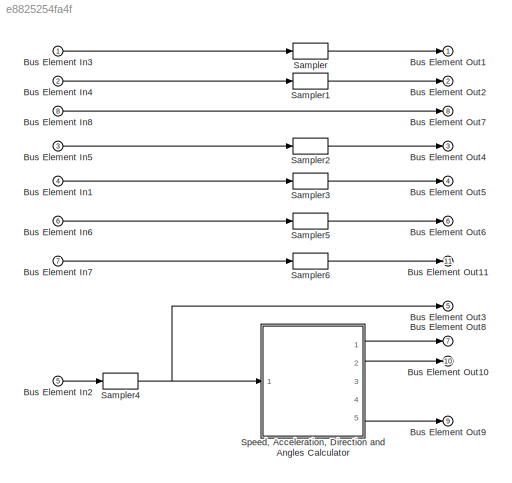
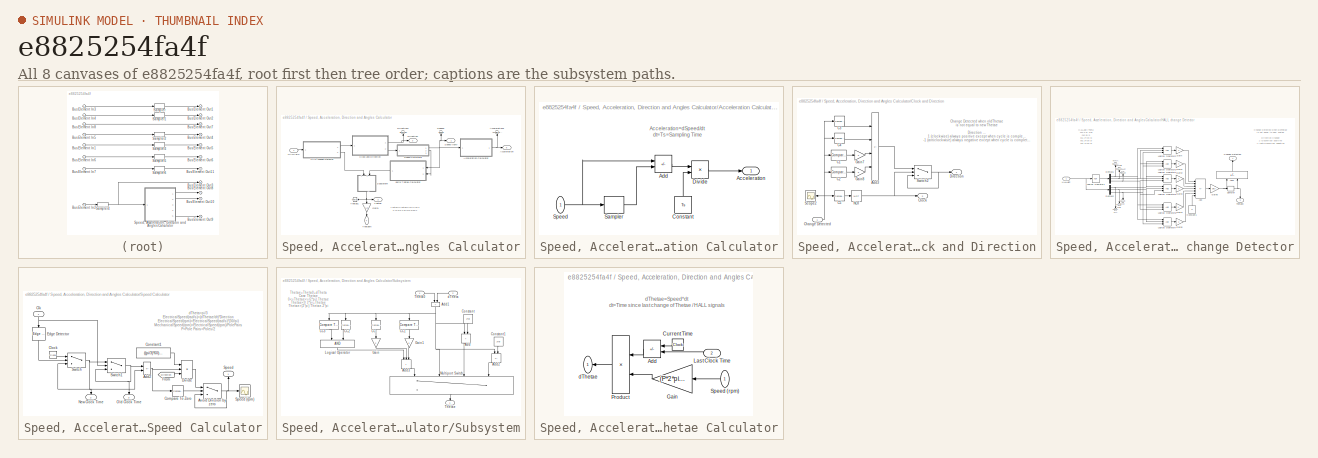
[diagram: thumbnail index - all 8 canvases of the model, root first then tree order]
MODEL slx_e8825254fa4f
KIND model
CONFIG AbsTol = auto
CONFIG EnableMultiTasking = off
CONFIG FixedStep = auto
CONFIG MaxStep = auto
CONFIG MinStep = auto
CONFIG RelTol = 1e-3
CONFIG SampleTimeConstraint = Unconstrained
CONFIG Solver = VariableStepAuto
CONFIG SolverName = VariableStepAuto
CONFIG StartTime = 0.0
CONFIG StopTime = 10.0
BLOCK [Inport] Bus Element In1
  Port = 4
BLOCK [Inport] Bus Element In2
  Port = 5
BLOCK [Inport] Bus Element In3
BLOCK [Inport] Bus Element In4
  Port = 2
BLOCK [Inport] Bus Element In5
  Port = 3
BLOCK [Inport] Bus Element In6
  Port = 6
BLOCK [Inport] Bus Element In7
  Port = 7
BLOCK [Inport] Bus Element In8
  Port = 8
BLOCK [Outport] Bus Element Out1
BLOCK [Outport] Bus Element Out10
  Port = 10
BLOCK [Outport] Bus Element Out11
  Port = 11
BLOCK [Outport] Bus Element Out2
  Port = 2
BLOCK [Outport] Bus Element Out3
  Port = 5
BLOCK [Outport] Bus Element Out4
  Port = 3
BLOCK [Outport] Bus Element Out5
  Port = 4
BLOCK [Outport] Bus Element Out6
  Port = 6
BLOCK [Outport] Bus Element Out7
  Port = 8
BLOCK [Outport] Bus Element Out8
  Port = 7
BLOCK [Outport] Bus Element Out9
  Port = 9
BLOCK [ZeroOrderHold] Sampler
  NameLocation = top
  SampleTime = 1e-4
BLOCK [ZeroOrderHold] Sampler1
  NameLocation = top
  SampleTime = 1e-4
BLOCK [ZeroOrderHold] Sampler2
  NameLocation = top
  SampleTime = 1e-4
BLOCK [ZeroOrderHold] Sampler3
  NameLocation = top
  SampleTime = 1e-4
BLOCK [ZeroOrderHold] Sampler4
  NameLocation = top
  SampleTime = 1e-4
BLOCK [ZeroOrderHold] Sampler5
  NameLocation = top
  SampleTime = 1e-4
BLOCK [ZeroOrderHold] Sampler6
  NameLocation = top
  SampleTime = 1e-4
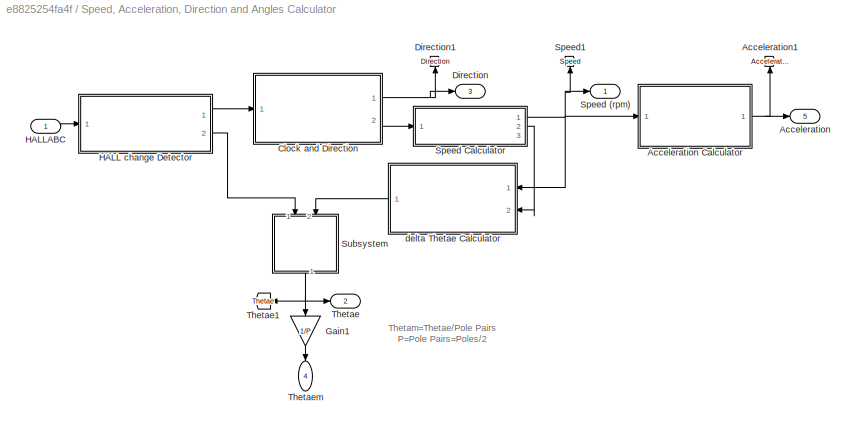
BLOCK [SubSystem] Speed, Acceleration, Direction and Angles Calculator
  Ports = [1, 5]
  RequestExecContextInheritance = off
BLOCK [Outport] Speed, Acceleration, Direction and Angles Calculator/Acceleration
  NameLocation = top
  Port = 5
BLOCK [SubSystem] Speed, Acceleration, Direction and Angles Calculator/Acceleration Calculator
  Ports = [1, 1]
  RequestExecContextInheritance = off
BLOCK [Outport] Speed, Acceleration, Direction and Angles Calculator/Acceleration Calculator/Acceleration
BLOCK [Sum] Speed, Acceleration, Direction and Angles Calculator/Acceleration Calculator/Add
  IconShape = rectangular
  Inputs = +-
  Ports = [2, 1]
BLOCK [Constant] Speed, Acceleration, Direction and Angles Calculator/Acceleration Calculator/Constant
  NameLocation = right
  Value = Ts
BLOCK [Product] Speed, Acceleration, Direction and Angles Calculator/Acceleration Calculator/Divide
  Inputs = */
  Ports = [2, 1]
BLOCK [ZeroOrderHold] Speed, Acceleration, Direction and Angles Calculator/Acceleration Calculator/Sampler
  SampleTime = Ts
BLOCK [Inport] Speed, Acceleration, Direction and Angles Calculator/Acceleration Calculator/Speed
  NameLocation = top
BLOCK [Goto] Speed, Acceleration, Direction and Angles Calculator/Acceleration1
  GotoTag = Acceleration
  NameLocation = right
  TagVisibility = global
BLOCK [SubSystem] Speed, Acceleration, Direction and Angles Calculator/Clock and Direction
  Ports = [1, 2]
  RequestExecContextInheritance = off
BLOCK [Sum] Speed, Acceleration, Direction and Angles Calculator/Clock and Direction/Add3
  IconShape = rectangular
  Inputs = -+-+
  OutDataTypeStr = double
  Ports = [4, 1]
BLOCK [Reference] Speed, Acceleration, Direction and Angles Calculator/Clock and Direction/C1  REF=simulink/Logic and Bit
Operations/Compare
To Constant
  Ports = [1, 1]
  SourceBlock = simulink/Logic and Bit\nOperations/Compare\nTo Constant
  SourceProductBaseCode = SL
  SourceType = Compare To Constant
BLOCK [Reference] Speed, Acceleration, Direction and Angles Calculator/Clock and Direction/C2  REF=simulink/Logic and Bit
Operations/Compare
To Constant
  Ports = [1, 1]
  SourceBlock = simulink/Logic and Bit\nOperations/Compare\nTo Constant
  SourceProductBaseCode = SL
  SourceType = Compare To Constant
BLOCK [Reference] Speed, Acceleration, Direction and Angles Calculator/Clock and Direction/C3  REF=simulink/Logic and Bit
Operations/Compare
To Zero
  NameLocation = top
  Ports = [1, 1]
  SourceBlock = simulink/Logic and Bit\nOperations/Compare\nTo Zero
  SourceProductBaseCode = SL
  SourceType = Compare To Zero
BLOCK [Reference] Speed, Acceleration, Direction and Angles Calculator/Clock and Direction/C4  REF=simulink/Logic and Bit
Operations/Compare
To Zero
  NameLocation = top
  Ports = [1, 1]
  SourceBlock = simulink/Logic and Bit\nOperations/Compare\nTo Zero
  SourceProductBaseCode = SL
  SourceType = Compare To Zero
BLOCK [Reference] Speed, Acceleration, Direction and Angles Calculator/Clock and Direction/C5  REF=simulink/Logic and Bit
Operations/Compare
To Zero
  NameLocation = top
  Ports = [1, 1]
  SourceBlock = simulink/Logic and Bit\nOperations/Compare\nTo Zero
  SourceProductBaseCode = SL
  SourceType = Compare To Zero
BLOCK [Inport] Speed, Acceleration, Direction and Angles Calculator/Clock and Direction/Change Detected
BLOCK [Outport] Speed, Acceleration, Direction and Angles Calculator/Clock and Direction/Clock
  Port = 2
BLOCK [Outport] Speed, Acceleration, Direction and Angles Calculator/Clock and Direction/Direction
BLOCK [Gain] Speed, Acceleration, Direction and Angles Calculator/Clock and Direction/Gain7
  Gain = 2
BLOCK [Gain] Speed, Acceleration, Direction and Angles Calculator/Clock and Direction/Gain8
  Gain = 2
BLOCK [Logic] Speed, Acceleration, Direction and Angles Calculator/Clock and Direction/NOT
  AllPortsSameDT = off
  NameLocation = top
  Operator = NOT
  OutDataTypeStr = boolean
  Ports = [1, 1]
BLOCK [Scope] Speed, Acceleration, Direction and Angles Calculator/Clock and Direction/Scope2
  Floating = off
  NameLocation = top
  NumInputPorts = 1
  Ports = [1]
  ScopeSpecificationString = C++SS(StrPVP('Location','[5, 49, 1371, 727]'),StrPVP('Open','off'),StrPVP('ZoomMode','xonly'),MxPVP('AxesTitles',54,'struct(''axes1'',''%<SignalLabel>'')'),MxPVP('ScopeGraphics',57,'struct(''FigureColor'',''[0.5 0.5 0.5]'',''AxesColor'',''[0 0 0]'',''AxesTickColor'',''[1 1 1]'',''LineColors'',''[1 1 0;1 0 1;0 1 1;1 0 0;0 1 0;0 0 1]'',''LineStyles'',''-|-|-|-|-|-'',''LineWidths'',''[0.5 0.5 0.5 0.5...<+337ch>
BLOCK [Switch] Speed, Acceleration, Direction and Angles Calculator/Clock and Direction/Switch2
  Criteria = u2 > Threshold
  InputSameDT = off
  SaturateOnIntegerOverflow = off
BLOCK [Outport] Speed, Acceleration, Direction and Angles Calculator/Direction
  NameLocation = top
  Port = 3
BLOCK [Goto] Speed, Acceleration, Direction and Angles Calculator/Direction1
  GotoTag = Direction
  NameLocation = right
  TagVisibility = global
BLOCK [Gain] Speed, Acceleration, Direction and Angles Calculator/Gain1
  Gain = 1/P
  NameLocation = right
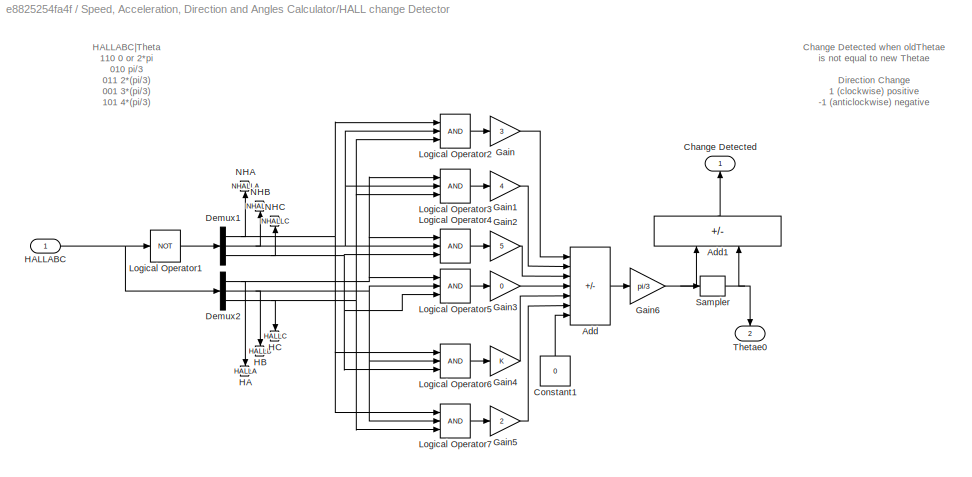
BLOCK [SubSystem] Speed, Acceleration, Direction and Angles Calculator/HALL change Detector
  Ports = [1, 2]
  RequestExecContextInheritance = off
BLOCK [Sum] Speed, Acceleration, Direction and Angles Calculator/HALL change Detector/Add
  IconShape = rectangular
  Inputs = ++++++-
  Ports = [7, 1]
BLOCK [Sum] Speed, Acceleration, Direction and Angles Calculator/HALL change Detector/Add1
  IconShape = rectangular
  Inputs = +-
  NameLocation = right
  Ports = [2, 1]
BLOCK [Outport] Speed, Acceleration, Direction and Angles Calculator/HALL change Detector/Change Detected
  NameLocation = right
BLOCK [Constant] Speed, Acceleration, Direction and Angles Calculator/HALL change Detector/Constant1
  NameLocation = right
  Value = 0
BLOCK [Demux] Speed, Acceleration, Direction and Angles Calculator/HALL change Detector/Demux1
  Outputs = 3
  Ports = [1, 3]
BLOCK [Demux] Speed, Acceleration, Direction and Angles Calculator/HALL change Detector/Demux2
  Outputs = 3
  Ports = [1, 3]
BLOCK [Gain] Speed, Acceleration, Direction and Angles Calculator/HALL change Detector/Gain
  Gain = 3
BLOCK [Gain] Speed, Acceleration, Direction and Angles Calculator/HALL change Detector/Gain1
  Gain = 4
BLOCK [Gain] Speed, Acceleration, Direction and Angles Calculator/HALL change Detector/Gain2
  Gain = 5
  NameLocation = top
BLOCK [Gain] Speed, Acceleration, Direction and Angles Calculator/HALL change Detector/Gain3
  Gain = 0
BLOCK [Gain] Speed, Acceleration, Direction and Angles Calculator/HALL change Detector/Gain4
BLOCK [Gain] Speed, Acceleration, Direction and Angles Calculator/HALL change Detector/Gain5
  Gain = 2
BLOCK [Gain] Speed, Acceleration, Direction and Angles Calculator/HALL change Detector/Gain6
  Gain = pi/3
  ParamDataTypeStr = double
BLOCK [Goto] Speed, Acceleration, Direction and Angles Calculator/HALL change Detector/HA
  GotoTag = HALLA
  NameLocation = right
  TagVisibility = global
BLOCK [Inport] Speed, Acceleration, Direction and Angles Calculator/HALL change Detector/HALLABC
BLOCK [Goto] Speed, Acceleration, Direction and Angles Calculator/HALL change Detector/HB
  GotoTag = HALLB
  NameLocation = right
  TagVisibility = global
BLOCK [Goto] Speed, Acceleration, Direction and Angles Calculator/HALL change Detector/HC
  GotoTag = HALLC
  NameLocation = right
  TagVisibility = global
BLOCK [Logic] Speed, Acceleration, Direction and Angles Calculator/HALL change Detector/Logical Operator1
  AllPortsSameDT = off
  NameLocation = top
  Operator = NOT
  OutDataTypeStr = boolean
  Ports = [1, 1]
BLOCK [Logic] Speed, Acceleration, Direction and Angles Calculator/HALL change Detector/Logical Operator2
  AllPortsSameDT = off
  Inputs = 3
  OutDataTypeStr = boolean
  Ports = [3, 1]
BLOCK [Logic] Speed, Acceleration, Direction and Angles Calculator/HALL change Detector/Logical Operator3
  AllPortsSameDT = off
  Inputs = 3
  OutDataTypeStr = boolean
  Ports = [3, 1]
BLOCK [Logic] Speed, Acceleration, Direction and Angles Calculator/HALL change Detector/Logical Operator4
  AllPortsSameDT = off
  Inputs = 3
  OutDataTypeStr = boolean
  Ports = [3, 1]
BLOCK [Logic] Speed, Acceleration, Direction and Angles Calculator/HALL change Detector/Logical Operator5
  AllPortsSameDT = off
  Inputs = 3
  OutDataTypeStr = boolean
  Ports = [3, 1]
BLOCK [Logic] Speed, Acceleration, Direction and Angles Calculator/HALL change Detector/Logical Operator6
  AllPortsSameDT = off
  Inputs = 3
  OutDataTypeStr = boolean
  Ports = [3, 1]
BLOCK [Logic] Speed, Acceleration, Direction and Angles Calculator/HALL change Detector/Logical Operator7
  AllPortsSameDT = off
  Inputs = 3
  OutDataTypeStr = boolean
  Ports = [3, 1]
BLOCK [Goto] Speed, Acceleration, Direction and Angles Calculator/HALL change Detector/NHA
  GotoTag = NHALLA
  NameLocation = right
  TagVisibility = global
BLOCK [Goto] Speed, Acceleration, Direction and Angles Calculator/HALL change Detector/NHB
  GotoTag = NHALLB
  NameLocation = right
  TagVisibility = global
BLOCK [Goto] Speed, Acceleration, Direction and Angles Calculator/HALL change Detector/NHC
  GotoTag = NHALLC
  NameLocation = right
  TagVisibility = global
BLOCK [ZeroOrderHold] Speed, Acceleration, Direction and Angles Calculator/HALL change Detector/Sampler
  SampleTime = 1.01*Ts
BLOCK [Outport] Speed, Acceleration, Direction and Angles Calculator/HALL change Detector/Thetae0
  NameLocation = right
  Port = 2
BLOCK [Inport] Speed, Acceleration, Direction and Angles Calculator/HALLABC
BLOCK [Outport] Speed, Acceleration, Direction and Angles Calculator/Speed (rpm)
  NameLocation = top
BLOCK [SubSystem] Speed, Acceleration, Direction and Angles Calculator/Speed Calculator
  Ports = [1, 3]
  RequestExecContextInheritance = off
BLOCK [Sum] Speed, Acceleration, Direction and Angles Calculator/Speed Calculator/Add2
  IconShape = rectangular
  Inputs = -+
  Ports = [2, 1]
BLOCK [Switch] Speed, Acceleration, Direction and Angles Calculator/Speed Calculator/Avoid Division by zero
  Criteria = u2 > Threshold
  InputSameDT = off
  SaturateOnIntegerOverflow = off
BLOCK [Inport] Speed, Acceleration, Direction and Angles Calculator/Speed Calculator/Clk
  NameLocation = right
BLOCK [Clock] Speed, Acceleration, Direction and Angles Calculator/Speed Calculator/Clock
  Decimation = 1000000
  NameLocation = top
BLOCK [Reference] Speed, Acceleration, Direction and Angles Calculator/Speed Calculator/Compare To Zero  REF=simulink/Logic and Bit
Operations/Compare
To Zero
  Ports = [1, 1]
  SourceBlock = simulink/Logic and Bit\nOperations/Compare\nTo Zero
  SourceProductBaseCode = SL
  SourceType = Compare To Zero
BLOCK [Constant] Speed, Acceleration, Direction and Angles Calculator/Speed Calculator/Constant1
  NameLocation = top
  Value = ((pi/3)*60)/(P*(2*pi))
BLOCK [Product] Speed, Acceleration, Direction and Angles Calculator/Speed Calculator/Divide
  Inputs = */*
  LockScale = on
  Ports = [3, 1]
BLOCK [Reference] Speed, Acceleration, Direction and Angles Calculator/Speed Calculator/Edge Detector  REF=powerlib_meascontrol/Logic/Edge Detector
  NameLocation = left
  Ports = [1, 1]
  SourceBlock = powerlib_meascontrol/Logic/Edge Detector
  SourceProductBaseCode = PS
  SourceType = Edge Detector
BLOCK [From] Speed, Acceleration, Direction and Angles Calculator/Speed Calculator/From
  GotoTag = Direction
  TagVisibility = global
BLOCK [Outport] Speed, Acceleration, Direction and Angles Calculator/Speed Calculator/New Clock Time
  NameLocation = left
  Port = 2
BLOCK [Outport] Speed, Acceleration, Direction and Angles Calculator/Speed Calculator/Old Clock Time
  NameLocation = left
  Port = 3
BLOCK [Outport] Speed, Acceleration, Direction and Angles Calculator/Speed Calculator/Speed
  NameLocation = right
BLOCK [Scope] Speed, Acceleration, Direction and Angles Calculator/Speed Calculator/Speed (rpm)
  Floating = off
  NumInputPorts = 1
  Ports = [1]
  ScopeSpecificationString = C++SS(StrPVP('Location','[1, 49, 1367, 727]'),StrPVP('Open','off'),StrPVP('ZoomMode','xonly'),MxPVP('AxesTitles',54,'struct(''axes1'',''%<SignalLabel>'')'),MxPVP('ScopeGraphics',57,'struct(''FigureColor'',''[0.5 0.5 0.5]'',''AxesColor'',''[0 0 0]'',''AxesTickColor'',''[1 1 1]'',''LineColors'',''[1 1 0;1 0 1;0 1 1;1 0 0;0 1 0;0 0 1]'',''LineStyles'',''-|-|-|-|-|-'',''LineWidths'',''[0.5 0.5 0.5 0.5...<+342ch>
BLOCK [Switch] Speed, Acceleration, Direction and Angles Calculator/Speed Calculator/Switch
  Criteria = u2 > Threshold
  InputSameDT = off
  SaturateOnIntegerOverflow = off
BLOCK [Switch] Speed, Acceleration, Direction and Angles Calculator/Speed Calculator/Switch1
  Criteria = u2 > Threshold
  InputSameDT = off
  SaturateOnIntegerOverflow = off
BLOCK [Goto] Speed, Acceleration, Direction and Angles Calculator/Speed1
  GotoTag = Speed
  NameLocation = right
  TagVisibility = global
BLOCK [SubSystem] Speed, Acceleration, Direction and Angles Calculator/Subsystem
  NameLocation = left
  Ports = [2, 1]
  RequestExecContextInheritance = off
BLOCK [Sum] Speed, Acceleration, Direction and Angles Calculator/Subsystem/Add
  IconShape = rectangular
  NameLocation = right
  Ports = [2, 1]
BLOCK [Sum] Speed, Acceleration, Direction and Angles Calculator/Subsystem/Add1
  IconShape = rectangular
  NameLocation = left
  Ports = [2, 1]
BLOCK [Sum] Speed, Acceleration, Direction and Angles Calculator/Subsystem/Add2
  IconShape = rectangular
  Inputs = +-
  NameLocation = right
  Ports = [2, 1]
BLOCK [Sum] Speed, Acceleration, Direction and Angles Calculator/Subsystem/Add3
  IconShape = rectangular
  Inputs = +++
  NameLocation = right
  Ports = [3, 1]
BLOCK [Reference] Speed, Acceleration, Direction and Angles Calculator/Subsystem/CC  REF=simulink/Logic and Bit
Operations/Compare
To Constant
  NameLocation = left
  Ports = [1, 1]
  SourceBlock = simulink/Logic and Bit\nOperations/Compare\nTo Constant
  SourceProductBaseCode = SL
  SourceType = Compare To Constant
BLOCK [Reference] Speed, Acceleration, Direction and Angles Calculator/Subsystem/CC1  REF=simulink/Logic and Bit
Operations/Compare
To Constant
  NameLocation = left
  Ports = [1, 1]
  SourceBlock = simulink/Logic and Bit\nOperations/Compare\nTo Constant
  SourceProductBaseCode = SL
  SourceType = Compare To Constant
BLOCK [Reference] Speed, Acceleration, Direction and Angles Calculator/Subsystem/CC2  REF=simulink/Logic and Bit
Operations/Compare
To Constant
  NameLocation = right
  Ports = [1, 1]
  SourceBlock = simulink/Logic and Bit\nOperations/Compare\nTo Constant
  SourceProductBaseCode = SL
  SourceType = Compare To Constant
BLOCK [Reference] Speed, Acceleration, Direction and Angles Calculator/Subsystem/CC3  REF=simulink/Logic and Bit
Operations/Compare
To Constant
  NameLocation = left
  Ports = [1, 1]
  SourceBlock = simulink/Logic and Bit\nOperations/Compare\nTo Constant
  SourceProductBaseCode = SL
  SourceType = Compare To Constant
BLOCK [Constant] Speed, Acceleration, Direction and Angles Calculator/Subsystem/Constant
  NameLocation = right
  Value = 2*pi
BLOCK [Constant] Speed, Acceleration, Direction and Angles Calculator/Subsystem/Constant1
  NameLocation = right
  Value = 2*pi
BLOCK [Gain] Speed, Acceleration, Direction and Angles Calculator/Subsystem/Gain
  Gain = 2
  NameLocation = left
BLOCK [Gain] Speed, Acceleration, Direction and Angles Calculator/Subsystem/Gain1
  Gain = 3
  NameLocation = left
BLOCK [Logic] Speed, Acceleration, Direction and Angles Calculator/Subsystem/Logical Operator
  AllPortsSameDT = off
  NameLocation = left
  OutDataTypeStr = boolean
  Ports = [2, 1]
BLOCK [MultiPortSwitch] Speed, Acceleration, Direction and Angles Calculator/Subsystem/Multiport Switch
  InputSameDT = off
  NameLocation = left
  Ports = [4, 1]
  SaturateOnIntegerOverflow = off
BLOCK [Inport] Speed, Acceleration, Direction and Angles Calculator/Subsystem/Theta0
BLOCK [Outport] Speed, Acceleration, Direction and Angles Calculator/Subsystem/Thetae
  NameLocation = right
BLOCK [Inport] Speed, Acceleration, Direction and Angles Calculator/Subsystem/dTheta
  Port = 2
BLOCK [Outport] Speed, Acceleration, Direction and Angles Calculator/Thetae
  Port = 2
BLOCK [Goto] Speed, Acceleration, Direction and Angles Calculator/Thetae1
  GotoTag = Thetae
  TagVisibility = global
BLOCK [Outport] Speed, Acceleration, Direction and Angles Calculator/Thetaem
  NameLocation = left
  Port = 4
BLOCK [SubSystem] Speed, Acceleration, Direction and Angles Calculator/delta Thetae Calculator
  Ports = [2, 1]
  RequestExecContextInheritance = off
BLOCK [Sum] Speed, Acceleration, Direction and Angles Calculator/delta Thetae Calculator/Add
  IconShape = rectangular
  Inputs = +-
  NameLocation = top
  Ports = [2, 1]
BLOCK [Clock] Speed, Acceleration, Direction and Angles Calculator/delta Thetae Calculator/Current Time
  Decimation = 1000000
  NameLocation = top
BLOCK [Gain] Speed, Acceleration, Direction and Angles Calculator/delta Thetae Calculator/Gain
  Gain = (P*2*pi)/60
BLOCK [Inport] Speed, Acceleration, Direction and Angles Calculator/delta Thetae Calculator/Last Clock Time
  NameLocation = top
  Port = 2
BLOCK [Product] Speed, Acceleration, Direction and Angles Calculator/delta Thetae Calculator/Product
  NameLocation = top
  Ports = [2, 1]
BLOCK [Inport] Speed, Acceleration, Direction and Angles Calculator/delta Thetae Calculator/Speed (rpm)
BLOCK [Outport] Speed, Acceleration, Direction and Angles Calculator/delta Thetae Calculator/dThetae
ANNOTATION Speed, Acceleration, Direction and Angles Calculator: Thetam=Thetae/Pole Pairs P=Pole Pairs=Poles/2
ANNOTATION Speed, Acceleration, Direction and Angles Calculator/Acceleration Calculator: Acceleration=dSpeed/dt dt=Ts=Sampling Time
ANNOTATION Speed, Acceleration, Direction and Angles Calculator/Clock and Direction: Change Detected when oldThetae is not equal to new Thetae Direction Change 1 (clockwise) always positive except when cycle is completed (-4*(pi/3)) -1 (anticlockwise) always negative except when cycle is completed (4*(pi/3))
ANNOTATION Speed, Acceleration, Direction and Angles Calculator/HALL change Detector: Change Detected when oldThetae is not equal to new Thetae Direction Change 1 (clockwise) positive -1 (anticlockwise) negative
ANNOTATION Speed, Acceleration, Direction and Angles Calculator/HALL change Detector: HALLABC|Theta 110 0 or 2*pi 010 pi/3 011 2*(pi/3) 001 3*(pi/3) 101 4*(pi/3) 100 5*(pi/3)
ANNOTATION Speed, Acceleration, Direction and Angles Calculator/Speed Calculator: dTheta=pi/3 ElectricalSpeed(rad/s)=(dThetae/dt)*Direction ElectricalSpeed(rpm)=ElectricalSpeed(rad/s)*(30/pi) MechanicalSpeed(rpm)=ElectricalSpeed(rpm)/PolePairs P=Pole Pairs=Poles/2
ANNOTATION Speed, Acceleration, Direction and Angles Calculator/Subsystem: Thetae=Theta0+dTheta Case Thetae 0 (2*pi) Thetae-2*pi
ANNOTATION Speed, Acceleration, Direction and Angles Calculator/delta Thetae Calculator: dThetae=Speed*dt dt=Time since last change of Thetae / HALL signals
LINE Bus Element In1:1 -> Sampler3:1
LINE Bus Element In2:1 -> Sampler4:1
LINE Bus Element In3:1 -> Sampler:1
LINE Bus Element In4:1 -> Sampler1:1
LINE Bus Element In5:1 -> Sampler2:1
LINE Bus Element In6:1 -> Sampler5:1
LINE Bus Element In7:1 -> Sampler6:1
LINE Bus Element In8:1 -> Bus Element Out7:1
LINE Sampler1:1 -> Bus Element Out2:1
LINE Sampler2:1 -> Bus Element Out4:1
LINE Sampler3:1 -> Bus Element Out5:1
NET Sampler4:1 -> Bus Element Out3:1, Speed, Acceleration, Direction and Angles Calculator:1
LINE Sampler5:1 -> Bus Element Out6:1
LINE Sampler6:1 -> Bus Element Out11:1
LINE Sampler:1 -> Bus Element Out1:1
LINE Speed, Acceleration, Direction and Angles Calculator/Acceleration Calculator/Add:1 -> Speed, Acceleration, Direction and Angles Calculator/Acceleration Calculator/Divide:1
LINE Speed, Acceleration, Direction and Angles Calculator/Acceleration Calculator/Constant:1 -> Speed, Acceleration, Direction and Angles Calculator/Acceleration Calculator/Divide:2
LINE Speed, Acceleration, Direction and Angles Calculator/Acceleration Calculator/Divide:1 -> Speed, Acceleration, Direction and Angles Calculator/Acceleration Calculator/Acceleration:1
LINE Speed, Acceleration, Direction and Angles Calculator/Acceleration Calculator/Sampler:1 -> Speed, Acceleration, Direction and Angles Calculator/Acceleration Calculator/Add:2
NET Speed, Acceleration, Direction and Angles Calculator/Acceleration Calculator/Speed:1 -> Speed, Acceleration, Direction and Angles Calculator/Acceleration Calculator/Add:1, Speed, Acceleration, Direction and Angles Calculator/Acceleration Calculator/Sampler:1
NET Speed, Acceleration, Direction and Angles Calculator/Acceleration Calculator:1 -> Speed, Acceleration, Direction and Angles Calculator/Acceleration1:1, Speed, Acceleration, Direction and Angles Calculator/Acceleration:1
LINE Speed, Acceleration, Direction and Angles Calculator/Clock and Direction/Add3:1 -> Speed, Acceleration, Direction and Angles Calculator/Clock and Direction/Switch2:1
LINE Speed, Acceleration, Direction and Angles Calculator/Clock and Direction/C1:1 -> Speed, Acceleration, Direction and Angles Calculator/Clock and Direction/Gain7:1
LINE Speed, Acceleration, Direction and Angles Calculator/Clock and Direction/C2:1 -> Speed, Acceleration, Direction and Angles Calculator/Clock and Direction/Gain8:1
LINE Speed, Acceleration, Direction and Angles Calculator/Clock and Direction/C3:1 -> Speed, Acceleration, Direction and Angles Calculator/Clock and Direction/Add3:1
LINE Speed, Acceleration, Direction and Angles Calculator/Clock and Direction/C4:1 -> Speed, Acceleration, Direction and Angles Calculator/Clock and Direction/Add3:2
LINE Speed, Acceleration, Direction and Angles Calculator/Clock and Direction/C5:1 -> Speed, Acceleration, Direction and Angles Calculator/Clock and Direction/NOT:1
NET Speed, Acceleration, Direction and Angles Calculator/Clock and Direction/Change Detected:1 -> Speed, Acceleration, Direction and Angles Calculator/Clock and Direction/C1:1, Speed, Acceleration, Direction and Angles Calculator/Clock and Direction/C2:1, Speed, Acceleration, Direction and Angles Calculator/Clock and Direction/C3:1, Speed, Acceleration, Direction and Angles Calculator/Clock and Direction/C4:1, Speed, Acceleration, Direction and Angles Calculator/Clock and Direction/C5:1, Speed, Acceleration, Direction and Angles Calculator/Clock and Direction/Scope2:1
LINE Speed, Acceleration, Direction and Angles Calculator/Clock and Direction/Gain7:1 -> Speed, Acceleration, Direction and Angles Calculator/Clock and Direction/Add3:3
LINE Speed, Acceleration, Direction and Angles Calculator/Clock and Direction/Gain8:1 -> Speed, Acceleration, Direction and Angles Calculator/Clock and Direction/Add3:4
NET Speed, Acceleration, Direction and Angles Calculator/Clock and Direction/NOT:1 -> Speed, Acceleration, Direction and Angles Calculator/Clock and Direction/Clock:1, Speed, Acceleration, Direction and Angles Calculator/Clock and Direction/Switch2:2
NET Speed, Acceleration, Direction and Angles Calculator/Clock and Direction/Switch2:1 -> Speed, Acceleration, Direction and Angles Calculator/Clock and Direction/Direction:1, Speed, Acceleration, Direction and Angles Calculator/Clock and Direction/Switch2:3
NET Speed, Acceleration, Direction and Angles Calculator/Clock and Direction:1 -> Speed, Acceleration, Direction and Angles Calculator/Direction1:1, Speed, Acceleration, Direction and Angles Calculator/Direction:1
LINE Speed, Acceleration, Direction and Angles Calculator/Clock and Direction:2 -> Speed, Acceleration, Direction and Angles Calculator/Speed Calculator:1
LINE Speed, Acceleration, Direction and Angles Calculator/Gain1:1 -> Speed, Acceleration, Direction and Angles Calculator/Thetaem:1
LINE Speed, Acceleration, Direction and Angles Calculator/HALL change Detector/Add1:1 -> Speed, Acceleration, Direction and Angles Calculator/HALL change Detector/Change Detected:1
LINE Speed, Acceleration, Direction and Angles Calculator/HALL change Detector/Add:1 -> Speed, Acceleration, Direction and Angles Calculator/HALL change Detector/Gain6:1
LINE Speed, Acceleration, Direction and Angles Calculator/HALL change Detector/Constant1:1 -> Speed, Acceleration, Direction and Angles Calculator/HALL change Detector/Add:7
NET Speed, Acceleration, Direction and Angles Calculator/HALL change Detector/Demux1:1 -> Speed, Acceleration, Direction and Angles Calculator/HALL change Detector/Logical Operator2:1, Speed, Acceleration, Direction and Angles Calculator/HALL change Detector/Logical Operator6:1, Speed, Acceleration, Direction and Angles Calculator/HALL change Detector/Logical Operator7:1, Speed, Acceleration, Direction and Angles Calculator/HALL change Detector/NHA:1
NET Speed, Acceleration, Direction and Angles Calculator/HALL change Detector/Demux1:2 -> Speed, Acceleration, Direction and Angles Calculator/HALL change Detector/Logical Operator2:2, Speed, Acceleration, Direction and Angles Calculator/HALL change Detector/Logical Operator3:2, Speed, Acceleration, Direction and Angles Calculator/HALL change Detector/Logical Operator4:2, Speed, Acceleration, Direction and Angles Calculator/HALL change Detector/NHB:1
NET Speed, Acceleration, Direction and Angles Calculator/HALL change Detector/Demux1:3 -> Speed, Acceleration, Direction and Angles Calculator/HALL change Detector/Logical Operator4:3, Speed, Acceleration, Direction and Angles Calculator/HALL change Detector/Logical Operator5:3, Speed, Acceleration, Direction and Angles Calculator/HALL change Detector/Logical Operator6:3, Speed, Acceleration, Direction and Angles Calculator/HALL change Detector/NHC:1
NET Speed, Acceleration, Direction and Angles Calculator/HALL change Detector/Demux2:1 -> Speed, Acceleration, Direction and Angles Calculator/HALL change Detector/HA:1, Speed, Acceleration, Direction and Angles Calculator/HALL change Detector/Logical Operator3:1, Speed, Acceleration, Direction and Angles Calculator/HALL change Detector/Logical Operator4:1, Speed, Acceleration, Direction and Angles Calculator/HALL change Detector/Logical Operator5:1
NET Speed, Acceleration, Direction and Angles Calculator/HALL change Detector/Demux2:2 -> Speed, Acceleration, Direction and Angles Calculator/HALL change Detector/HB:1, Speed, Acceleration, Direction and Angles Calculator/HALL change Detector/Logical Operator5:2, Speed, Acceleration, Direction and Angles Calculator/HALL change Detector/Logical Operator6:2, Speed, Acceleration, Direction and Angles Calculator/HALL change Detector/Logical Operator7:2
NET Speed, Acceleration, Direction and Angles Calculator/HALL change Detector/Demux2:3 -> Speed, Acceleration, Direction and Angles Calculator/HALL change Detector/HC:1, Speed, Acceleration, Direction and Angles Calculator/HALL change Detector/Logical Operator2:3, Speed, Acceleration, Direction and Angles Calculator/HALL change Detector/Logical Operator3:3, Speed, Acceleration, Direction and Angles Calculator/HALL change Detector/Logical Operator7:3
LINE Speed, Acceleration, Direction and Angles Calculator/HALL change Detector/Gain1:1 -> Speed, Acceleration, Direction and Angles Calculator/HALL change Detector/Add:2
LINE Speed, Acceleration, Direction and Angles Calculator/HALL change Detector/Gain2:1 -> Speed, Acceleration, Direction and Angles Calculator/HALL change Detector/Add:3
LINE Speed, Acceleration, Direction and Angles Calculator/HALL change Detector/Gain3:1 -> Speed, Acceleration, Direction and Angles Calculator/HALL change Detector/Add:4
LINE Speed, Acceleration, Direction and Angles Calculator/HALL change Detector/Gain4:1 -> Speed, Acceleration, Direction and Angles Calculator/HALL change Detector/Add:5
LINE Speed, Acceleration, Direction and Angles Calculator/HALL change Detector/Gain5:1 -> Speed, Acceleration, Direction and Angles Calculator/HALL change Detector/Add:6
NET Speed, Acceleration, Direction and Angles Calculator/HALL change Detector/Gain6:1 -> Speed, Acceleration, Direction and Angles Calculator/HALL change Detector/Add1:1, Speed, Acceleration, Direction and Angles Calculator/HALL change Detector/Sampler:1
LINE Speed, Acceleration, Direction and Angles Calculator/HALL change Detector/Gain:1 -> Speed, Acceleration, Direction and Angles Calculator/HALL change Detector/Add:1
NET Speed, Acceleration, Direction and Angles Calculator/HALL change Detector/HALLABC:1 -> Speed, Acceleration, Direction and Angles Calculator/HALL change Detector/Demux2:1, Speed, Acceleration, Direction and Angles Calculator/HALL change Detector/Logical Operator1:1
LINE Speed, Acceleration, Direction and Angles Calculator/HALL change Detector/Logical Operator1:1 -> Speed, Acceleration, Direction and Angles Calculator/HALL change Detector/Demux1:1
LINE Speed, Acceleration, Direction and Angles Calculator/HALL change Detector/Logical Operator2:1 -> Speed, Acceleration, Direction and Angles Calculator/HALL change Detector/Gain:1
LINE Speed, Acceleration, Direction and Angles Calculator/HALL change Detector/Logical Operator3:1 -> Speed, Acceleration, Direction and Angles Calculator/HALL change Detector/Gain1:1
LINE Speed, Acceleration, Direction and Angles Calculator/HALL change Detector/Logical Operator4:1 -> Speed, Acceleration, Direction and Angles Calculator/HALL change Detector/Gain2:1
LINE Speed, Acceleration, Direction and Angles Calculator/HALL change Detector/Logical Operator5:1 -> Speed, Acceleration, Direction and Angles Calculator/HALL change Detector/Gain3:1
LINE Speed, Acceleration, Direction and Angles Calculator/HALL change Detector/Logical Operator6:1 -> Speed, Acceleration, Direction and Angles Calculator/HALL change Detector/Gain4:1
LINE Speed, Acceleration, Direction and Angles Calculator/HALL change Detector/Logical Operator7:1 -> Speed, Acceleration, Direction and Angles Calculator/HALL change Detector/Gain5:1
NET Speed, Acceleration, Direction and Angles Calculator/HALL change Detector/Sampler:1 -> Speed, Acceleration, Direction and Angles Calculator/HALL change Detector/Add1:2, Speed, Acceleration, Direction and Angles Calculator/HALL change Detector/Thetae0:1
LINE Speed, Acceleration, Direction and Angles Calculator/HALL change Detector:1 -> Speed, Acceleration, Direction and Angles Calculator/Clock and Direction:1
LINE Speed, Acceleration, Direction and Angles Calculator/HALL change Detector:2 -> Speed, Acceleration, Direction and Angles Calculator/Subsystem:1
LINE Speed, Acceleration, Direction and Angles Calculator/HALLABC:1 -> Speed, Acceleration, Direction and Angles Calculator/HALL change Detector:1
NET Speed, Acceleration, Direction and Angles Calculator/Speed Calculator/Add2:1 -> Speed, Acceleration, Direction and Angles Calculator/Speed Calculator/Compare To Zero:1, Speed, Acceleration, Direction and Angles Calculator/Speed Calculator/Divide:2
NET Speed, Acceleration, Direction and Angles Calculator/Speed Calculator/Avoid Division by zero:1 -> Speed, Acceleration, Direction and Angles Calculator/Speed Calculator/Avoid Division by zero:3, Speed, Acceleration, Direction and Angles Calculator/Speed Calculator/Speed (rpm):1, Speed, Acceleration, Direction and Angles Calculator/Speed Calculator/Speed:1
NET Speed, Acceleration, Direction and Angles Calculator/Speed Calculator/Clk:1 -> Speed, Acceleration, Direction and Angles Calculator/Speed Calculator/Edge Detector:1, Speed, Acceleration, Direction and Angles Calculator/Speed Calculator/Switch1:2
LINE Speed, Acceleration, Direction and Angles Calculator/Speed Calculator/Clock:1 -> Speed, Acceleration, Direction and Angles Calculator/Speed Calculator/Switch:1
LINE Speed, Acceleration, Direction and Angles Calculator/Speed Calculator/Compare To Zero:1 -> Speed, Acceleration, Direction and Angles Calculator/Speed Calculator/Avoid Division by zero:2
LINE Speed, Acceleration, Direction and Angles Calculator/Speed Calculator/Constant1:1 -> Speed, Acceleration, Direction and Angles Calculator/Speed Calculator/Divide:1
LINE Speed, Acceleration, Direction and Angles Calculator/Speed Calculator/Divide:1 -> Speed, Acceleration, Direction and Angles Calculator/Speed Calculator/Avoid Division by zero:1
LINE Speed, Acceleration, Direction and Angles Calculator/Speed Calculator/Edge Detector:1 -> Speed, Acceleration, Direction and Angles Calculator/Speed Calculator/Switch:2
LINE Speed, Acceleration, Direction and Angles Calculator/Speed Calculator/From:1 -> Speed, Acceleration, Direction and Angles Calculator/Speed Calculator/Divide:3
NET Speed, Acceleration, Direction and Angles Calculator/Speed Calculator/Switch1:1 -> Speed, Acceleration, Direction and Angles Calculator/Speed Calculator/Add2:1, Speed, Acceleration, Direction and Angles Calculator/Speed Calculator/Old Clock Time:1, Speed, Acceleration, Direction and Angles Calculator/Speed Calculator/Switch1:3
NET Speed, Acceleration, Direction and Angles Calculator/Speed Calculator/Switch:1 -> Speed, Acceleration, Direction and Angles Calculator/Speed Calculator/Add2:2, Speed, Acceleration, Direction and Angles Calculator/Speed Calculator/New Clock Time:1, Speed, Acceleration, Direction and Angles Calculator/Speed Calculator/Switch1:1, Speed, Acceleration, Direction and Angles Calculator/Speed Calculator/Switch:3
NET Speed, Acceleration, Direction and Angles Calculator/Speed Calculator:1 -> Speed, Acceleration, Direction and Angles Calculator/Acceleration Calculator:1, Speed, Acceleration, Direction and Angles Calculator/Speed (rpm):1, Speed, Acceleration, Direction and Angles Calculator/Speed1:1, Speed, Acceleration, Direction and Angles Calculator/delta Thetae Calculator:1
LINE Speed, Acceleration, Direction and Angles Calculator/Speed Calculator:2 -> Speed, Acceleration, Direction and Angles Calculator/delta Thetae Calculator:2
NET Speed, Acceleration, Direction and Angles Calculator/Subsystem/Add1:1 -> Speed, Acceleration, Direction and Angles Calculator/Subsystem/Add2:1, Speed, Acceleration, Direction and Angles Calculator/Subsystem/Add:1, Speed, Acceleration, Direction and Angles Calculator/Subsystem/CC1:1, Speed, Acceleration, Direction and Angles Calculator/Subsystem/CC2:1, Speed, Acceleration, Direction and Angles Calculator/Subsystem/CC3:1, Speed, Acceleration, Direction and Angles Calculator/Subsystem/CC:1, Speed, Acceleration, Direction and Angles Calculator/Subsystem/Multiport Switch:2
LINE Speed, Acceleration, Direction and Angles Calculator/Subsystem/Add2:1 -> Speed, Acceleration, Direction and Angles Calculator/Subsystem/Multiport Switch:4
LINE Speed, Acceleration, Direction and Angles Calculator/Subsystem/Add3:1 -> Speed, Acceleration, Direction and Angles Calculator/Subsystem/Multiport Switch:1
LINE Speed, Acceleration, Direction and Angles Calculator/Subsystem/Add:1 -> Speed, Acceleration, Direction and Angles Calculator/Subsystem/Multiport Switch:3
LINE Speed, Acceleration, Direction and Angles Calculator/Subsystem/CC1:1 -> Speed, Acceleration, Direction and Angles Calculator/Subsystem/Gain1:1
LINE Speed, Acceleration, Direction and Angles Calculator/Subsystem/CC2:1 -> Speed, Acceleration, Direction and Angles Calculator/Subsystem/Logical Operator:2
LINE Speed, Acceleration, Direction and Angles Calculator/Subsystem/CC3:1 -> Speed, Acceleration, Direction and Angles Calculator/Subsystem/Logical Operator:1
LINE Speed, Acceleration, Direction and Angles Calculator/Subsystem/CC:1 -> Speed, Acceleration, Direction and Angles Calculator/Subsystem/Gain:1
LINE Speed, Acceleration, Direction and Angles Calculator/Subsystem/Constant1:1 -> Speed, Acceleration, Direction and Angles Calculator/Subsystem/Add2:2
LINE Speed, Acceleration, Direction and Angles Calculator/Subsystem/Constant:1 -> Speed, Acceleration, Direction and Angles Calculator/Subsystem/Add:2
LINE Speed, Acceleration, Direction and Angles Calculator/Subsystem/Gain1:1 -> Speed, Acceleration, Direction and Angles Calculator/Subsystem/Add3:3
LINE Speed, Acceleration, Direction and Angles Calculator/Subsystem/Gain:1 -> Speed, Acceleration, Direction and Angles Calculator/Subsystem/Add3:2
LINE Speed, Acceleration, Direction and Angles Calculator/Subsystem/Logical Operator:1 -> Speed, Acceleration, Direction and Angles Calculator/Subsystem/Add3:1
LINE Speed, Acceleration, Direction and Angles Calculator/Subsystem/Multiport Switch:1 -> Speed, Acceleration, Direction and Angles Calculator/Subsystem/Thetae:1
LINE Speed, Acceleration, Direction and Angles Calculator/Subsystem/Theta0:1 -> Speed, Acceleration, Direction and Angles Calculator/Subsystem/Add1:1
LINE Speed, Acceleration, Direction and Angles Calculator/Subsystem/dTheta:1 -> Speed, Acceleration, Direction and Angles Calculator/Subsystem/Add1:2
NET Speed, Acceleration, Direction and Angles Calculator/Subsystem:1 -> Speed, Acceleration, Direction and Angles Calculator/Gain1:1, Speed, Acceleration, Direction and Angles Calculator/Thetae1:1, Speed, Acceleration, Direction and Angles Calculator/Thetae:1
LINE Speed, Acceleration, Direction and Angles Calculator/delta Thetae Calculator/Add:1 -> Speed, Acceleration, Direction and Angles Calculator/delta Thetae Calculator/Product:1
LINE Speed, Acceleration, Direction and Angles Calculator/delta Thetae Calculator/Current Time:1 -> Speed, Acceleration, Direction and Angles Calculator/delta Thetae Calculator/Add:1
LINE Speed, Acceleration, Direction and Angles Calculator/delta Thetae Calculator/Gain:1 -> Speed, Acceleration, Direction and Angles Calculator/delta Thetae Calculator/Product:2
LINE Speed, Acceleration, Direction and Angles Calculator/delta Thetae Calculator/Last Clock Time:1 -> Speed, Acceleration, Direction and Angles Calculator/delta Thetae Calculator/Add:2
LINE Speed, Acceleration, Direction and Angles Calculator/delta Thetae Calculator/Product:1 -> Speed, Acceleration, Direction and Angles Calculator/delta Thetae Calculator/dThetae:1
LINE Speed, Acceleration, Direction and Angles Calculator/delta Thetae Calculator/Speed (rpm):1 -> Speed, Acceleration, Direction and Angles Calculator/delta Thetae Calculator/Gain:1
LINE Speed, Acceleration, Direction and Angles Calculator/delta Thetae Calculator:1 -> Speed, Acceleration, Direction and Angles Calculator/Subsystem:2
LINE Speed, Acceleration, Direction and Angles Calculator:1 -> Bus Element Out8:1
LINE Speed, Acceleration, Direction and Angles Calculator:2 -> Bus Element Out10:1
LINE Speed, Acceleration, Direction and Angles Calculator:5 -> Bus Element Out9:1
note: NET lines group one-source signal fan-out (src -> all destinations, sorted); 1:1 wires keep LINE
